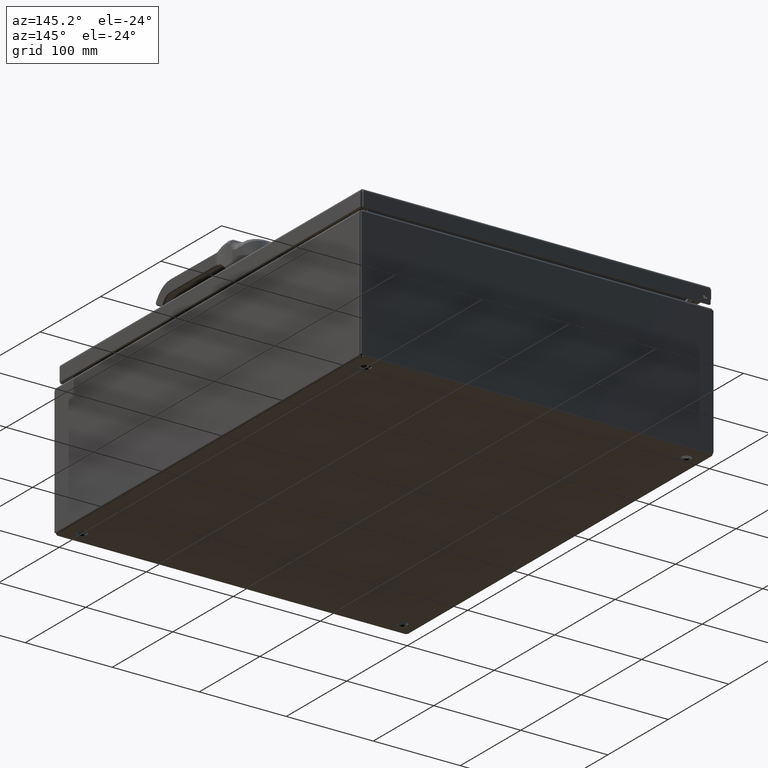
[diagram: clean part render]
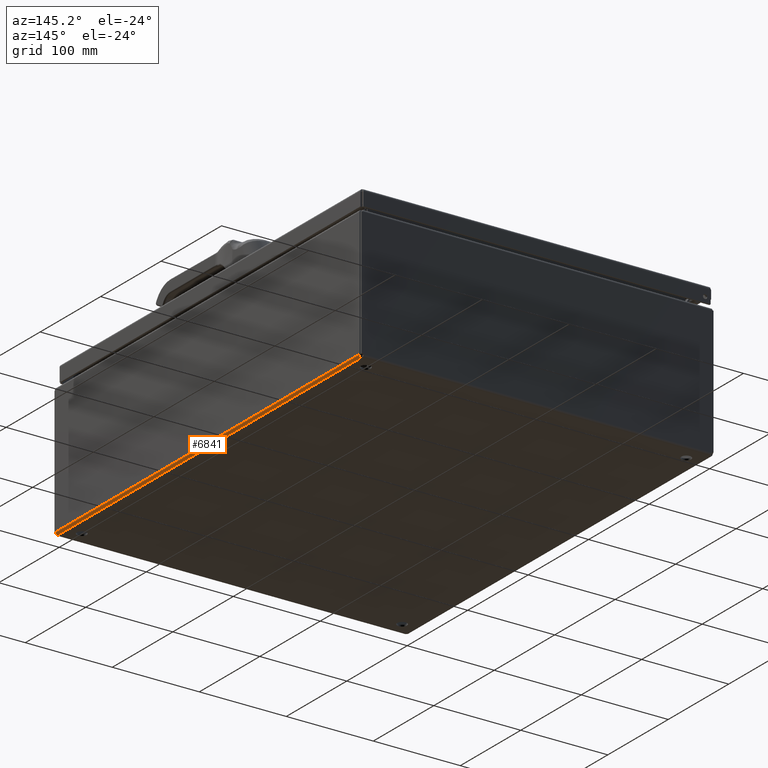
[diagram: same view with one face highlighted and labeled with its STEP entity id]
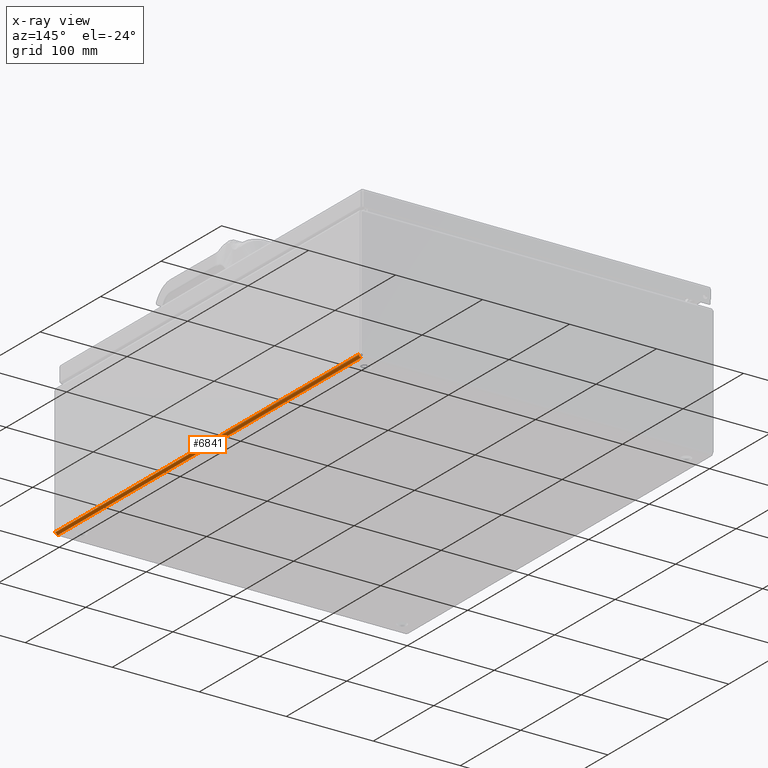
[diagram: x-ray of the same camera — body ghosted, the highlighted face saturated]
A machine part, auxiliary view. The second image highlights one B-rep face of the part: STEP entity #6841.
The next image is the same camera in x-ray: the body ghosted, the highlighted face saturated — about 0% of this face is hidden behind the body in this view.
In plain terms, the highlighted cylindrical surface (edge-blend (fillet) strip) has radius 2.6733 mm, axis along (0, -1, 0).
Its self-contained STEP definition (entity closure, byte-faithful):
#335 = CARTESIAN_POINT ( 'NONE',  ( 15.92126145305312157, 0.1235861021334213189, 0.003170125654244479105 ) ) ;
#578 = CARTESIAN_POINT ( 'NONE',  ( 15.98644209411149397, 0.1285959207202926891, 0.05309574726665325373 ) ) ;
#835 = CARTESIAN_POINT ( 'NONE',  ( 16.00000000000000355, 0.1146701816057457829, 0.1052499999999965130 ) ) ;
#3104 = DIRECTION ( 'NONE',  ( 2.797412000000000164E-16, -1.000000000000000000, 0.0000000000000000000 ) ) ;
#3673 = CARTESIAN_POINT ( 'NONE',  ( 15.99487451277747496, 19.87484607378324952, 0.07206705077422714822 ) ) ;
#3911 = CARTESIAN_POINT ( 'NONE',  ( 15.92118416943365311, 19.87636579113686963, 0.003149946058920652034 ) ) ;
#5162 = ORIENTED_EDGE ( 'NONE', *, *, #30582, .T. ) ;
#5742 = CARTESIAN_POINT ( 'NONE',  ( 15.99685003533165428, 0.1236340836349830302, 0.07881575329795052764 ) ) ;
#5987 = CARTESIAN_POINT ( 'NONE',  ( 15.90129436155937448, 0.1174735587565350070, -1.589620729516455727E-15 ) ) ;
#6841 = ADVANCED_FACE ( 'NONE', ( #52894 ), #45698, .T. ) ;
#9161 = B_SPLINE_CURVE_WITH_KNOTS ( 'NONE', 3,
 ( #835, #17716, #17961, #5742, #51382, #68805, #578, #57821, #17219, #51129, #62782, #28689, #68547, #34416, #335, #63289, #5987, #45877 ),
 .UNSPECIFIED., .F., .F.,
 ( 4, 2, 2, 2, 2, 2, 2, 2, 4 ),
 ( 1.002553488666166794E-16, 0.0005348339429740691297, 0.001069667885948037862, 0.001604501828922006703, 0.002139335771895975544, 0.002674169714869944602, 0.003209003657843914094, 0.003743837600817883152, 0.004278671543791853077 ),
 .UNSPECIFIED. ) ;
#9332 = CARTESIAN_POINT ( 'NONE',  ( 15.99999999999999822, 19.88532981839426128, 0.1052500000000022445 ) ) ;
#10838 = CARTESIAN_POINT ( 'NONE',  ( 15.95869420099393032, 19.87019892638188168, 0.02135336547913090077 ) ) ;
#15132 = ORIENTED_EDGE ( 'NONE', *, *, #56100, .T. ) ;
#17219 = CARTESIAN_POINT ( 'NONE',  ( 15.97416605588196958, 0.1300969542385495836, 0.03582434404559128871 ) ) ;
#17716 = CARTESIAN_POINT ( 'NONE',  ( 16.00000000000000355, 0.1174736838676262302, 0.09870534637424906166 ) ) ;
#17961 = CARTESIAN_POINT ( 'NONE',  ( 15.99939145634944992, 0.1197567546995682991, 0.09208367072807489839 ) ) ;
#19880 = ORIENTED_EDGE ( 'NONE', *, *, #59460, .T. ) ;
#20232 = AXIS2_PLACEMENT_3D ( 'NONE', #25730, #3104, #60090 ) ;
#21033 = CARTESIAN_POINT ( 'NONE',  ( 15.92790252573863619, 19.87476995957713299, 0.005117976229255498041 ) ) ;
#21459 = CARTESIAN_POINT ( 'NONE',  ( 15.89475000000000726, 0.1146701816057458523, 0.0000000000000000000 ) ) ;
#21724 = CARTESIAN_POINT ( 'NONE',  ( 16.00000000000000000, 0.1146701816057470458, 0.1052500000000000102 ) ) ;
#22533 = CARTESIAN_POINT ( 'NONE',  ( 15.94073566990545565, 19.87229714192464414, 0.01032460660801868928 ) ) ;
#22806 = VECTOR ( 'NONE', #61025, 39.37007874015748143 ) ;
#25730 = CARTESIAN_POINT ( 'NONE',  ( 15.89475000000000193, 0.1146701816057470180, 0.1052500000000000102 ) ) ;
#26515 = DIRECTION ( 'NONE',  ( 2.797412000000000164E-16, -1.000000000000000000, 0.0000000000000000000 ) ) ;
#26547 = CARTESIAN_POINT ( 'NONE',  ( 15.94690417769112045, 19.87140409200796398, 0.01355786361937009327 ) ) ;
#26580 = VERTEX_POINT ( 'NONE', #60992 ) ;
#27074 = CARTESIAN_POINT ( 'NONE',  ( 15.89474999999999838, 19.88532981839426128, 0.0000000000000000000 ) ) ;
#27264 = VERTEX_POINT ( 'NONE', #27074 ) ;
#27275 = LINE ( 'NONE', #71763, #22806 ) ;
#28285 = CARTESIAN_POINT ( 'NONE',  ( 15.90791629203809876, 19.88024318901010190, 0.0006085403275265389555 ) ) ;
#28689 = CARTESIAN_POINT ( 'NONE',  ( 15.94698916236265873, 0.1285642441026947358, 0.01360978618199477908 ) ) ;
#28922 = EDGE_CURVE ( 'NONE', #31005, #27264, #27275, .T. ) ;
#30582 = EDGE_CURVE ( 'NONE', #27264, #34728, #73362, .T. ) ;
#31005 = VERTEX_POINT ( 'NONE', #21459 ) ;
#34416 = CARTESIAN_POINT ( 'NONE',  ( 15.92793287313272366, 0.1251544254852100246, 0.005125462770438478539 ) ) ;
#34728 = VERTEX_POINT ( 'NONE', #44335 ) ;
#36652 = VECTOR ( 'NONE', #26515, 39.37007874015748143 ) ;
#37498 = CARTESIAN_POINT ( 'NONE',  ( 15.97863937033215898, 19.87020233482258291, 0.04130133045547817322 ) ) ;
#37749 = CARTESIAN_POINT ( 'NONE',  ( 15.97410649955897455, 19.86989982269864541, 0.03575627655996282267 ) ) ;
#37996 = CARTESIAN_POINT ( 'NONE',  ( 15.99938079594977047, 19.88024177324565755, 0.09200029461967414168 ) ) ;
#43248 = CARTESIAN_POINT ( 'NONE',  ( 15.99682986193837131, 19.87641425390242844, 0.07873849418854453330 ) ) ;
#43495 = CARTESIAN_POINT ( 'NONE',  ( 16.00000000000001066, 19.88252644152596815, 0.09870563910009758080 ) ) ;
#44335 = CARTESIAN_POINT ( 'NONE',  ( 15.99999999999999822, 19.88532981839426128, 0.1052500000000022445 ) ) ;
#45698 = CYLINDRICAL_SURFACE ( 'NONE', #20232, 0.1052499999999985530 ) ;
#45877 = CARTESIAN_POINT ( 'NONE',  ( 15.89475000000000726, 0.1146701816057458523, 0.0000000000000000000 ) ) ;
#49495 = CARTESIAN_POINT ( 'NONE',  ( 15.90129464488601840, 19.88252631987616681, -9.268007744130520381E-16 ) ) ;
#50577 = EDGE_LOOP ( 'NONE', ( #61871, #5162, #19880, #15132 ) ) ;
#51129 = CARTESIAN_POINT ( 'NONE',  ( 15.96424366413730844, 0.1301007719207362412, 0.02589344840330357403 ) ) ;
#51382 = CARTESIAN_POINT ( 'NONE',  ( 15.99488199687389134, 0.1252299011267300477, 0.07209739308914041300 ) ) ;
#51833 = LINE ( 'NONE', #21724, #36652 ) ;
#52894 = FACE_OUTER_BOUND ( 'NONE', #50577, .T. ) ;
#56100 = EDGE_CURVE ( 'NONE', #26580, #31005, #9161, .T. ) ;
#57821 = CARTESIAN_POINT ( 'NONE',  ( 15.97864657609084205, 0.1298013005487367866, 0.04130572174964623061 ) ) ;
#59460 = EDGE_CURVE ( 'NONE', #34728, #26580, #51833, .T. ) ;
#60090 = DIRECTION ( 'NONE',  ( 1.000000000000000000, 3.244475051857839239E-16, 0.0000000000000000000 ) ) ;
#60398 = CARTESIAN_POINT ( 'NONE',  ( 15.98963171034348640, 19.87235278415762707, 0.05916868903187869760 ) ) ;
#60658 = CARTESIAN_POINT ( 'NONE',  ( 15.89474999999999838, 19.88532981839426128, 0.0000000000000000000 ) ) ;
#60992 = CARTESIAN_POINT ( 'NONE',  ( 16.00000000000000355, 0.1146701816057457829, 0.1052499999999965130 ) ) ;
#61025 = DIRECTION ( 'NONE',  ( -0.0000000000000000000, 1.000000000000000000, 0.0000000000000000000 ) ) ;
#61871 = ORIENTED_EDGE ( 'NONE', *, *, #28922, .T. ) ;
#62387 = CARTESIAN_POINT ( 'NONE',  ( 15.96417559829358801, 19.86990340405841593, 0.02583389381623783787 ) ) ;
#62782 = CARTESIAN_POINT ( 'NONE',  ( 15.95869859479723019, 0.1297983621343369032, 0.02136057220112713706 ) ) ;
#63289 = CARTESIAN_POINT ( 'NONE',  ( 15.90799969022323701, 0.1197583346553885292, 0.0006192033939282177643 ) ) ;
#68547 = CARTESIAN_POINT ( 'NONE',  ( 15.94083121897110367, 0.1276479115094948102, 0.01036824578501072125 ) ) ;
#68805 = CARTESIAN_POINT ( 'NONE',  ( 15.98967535636457704, 0.1277027900074597100, 0.05926425370837663797 ) ) ;
#71763 = CARTESIAN_POINT ( 'NONE',  ( 15.89475000000000549, 10.00000000000000000, 0.0000000000000000000 ) ) ;
#72150 = CARTESIAN_POINT ( 'NONE',  ( 15.98639016103756916, 19.87143650074819945, 0.05301074582989421385 ) ) ;
#73362 = B_SPLINE_CURVE_WITH_KNOTS ( 'NONE', 3,
 ( #60658, #49495, #28285, #3911, #21033, #22533, #26547, #10838, #62387, #37749, #37498, #72150, #60398, #3673, #43248, #37996, #43495, #9332 ),
 .UNSPECIFIED., .F., .F.,
 ( 4, 2, 2, 2, 2, 2, 2, 2, 4 ),
 ( 1.626575447328563646E-18, 0.0005348332232804053074, 0.001069666446560809097, 0.001604499669841212995, 0.002139332893121616459, 0.002674166116402019924, 0.003208999339682424255, 0.003743832562962827286, 0.004278665786243230316 ),
 .UNSPECIFIED. ) ;